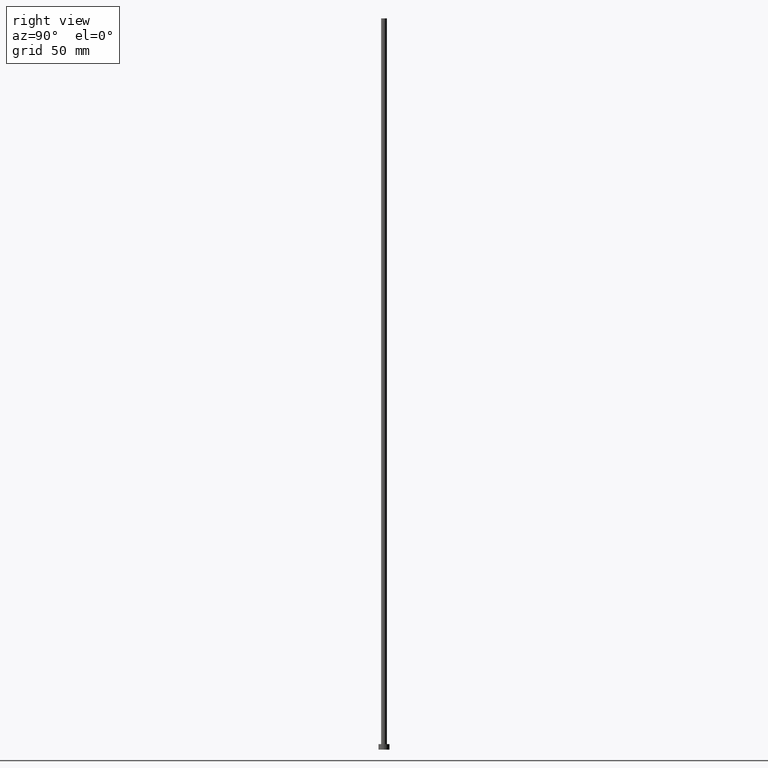
[diagram: clean part render]
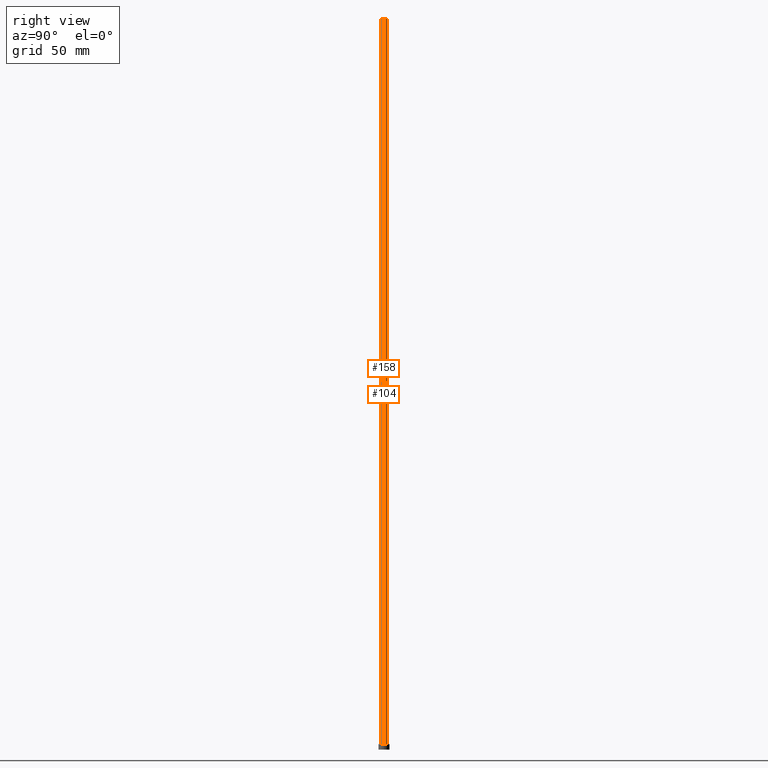
[diagram: same view with one multi-face feature highlighted, each face labeled with its STEP entity id]
A machine part, right view. The highlighted faces form ONE feature: a constant-radius fillet chain: 2 tangent blend faces with common blend radius 1.6 mm. The faces share edges in the B-rep.
Their STEP definitions:
[1] entity #158 (Cylinder):
#3 = VERTEX_POINT ( 'NONE', #246 ) ;
#12 = CARTESIAN_POINT ( 'NONE',  ( -1.600000000000000089, 0.000000000000000000, 400.0000000000000000 ) ) ;
#28 = CARTESIAN_POINT ( 'NONE',  ( 0.000000000000000000, 0.000000000000000000, 400.0000000000000000 ) ) ;
#30 = DIRECTION ( 'NONE',  ( -0.000000000000000000, -0.000000000000000000, -1.000000000000000000 ) ) ;
#33 = EDGE_CURVE ( 'NONE', #74, #204, #134, .T. ) ;
#35 = DIRECTION ( 'NONE',  ( -0.000000000000000000, -0.000000000000000000, -1.000000000000000000 ) ) ;
#45 = ORIENTED_EDGE ( 'NONE', *, *, #172, .T. ) ;
#52 = DIRECTION ( 'NONE',  ( 1.000000000000000000, 0.000000000000000000, 0.000000000000000000 ) ) ;
#55 = ORIENTED_EDGE ( 'NONE', *, *, #33, .F. ) ;
#61 = EDGE_CURVE ( 'NONE', #182, #74, #168, .T. ) ;
#62 = CIRCLE ( 'NONE', #96, 1.600000000000000089 ) ;
#68 = DIRECTION ( 'NONE',  ( 1.000000000000000000, 0.000000000000000000, 0.000000000000000000 ) ) ;
#70 = DIRECTION ( 'NONE',  ( -1.000000000000000000, 0.000000000000000000, 0.000000000000000000 ) ) ;
#74 = VERTEX_POINT ( 'NONE', #214 ) ;
#81 = VECTOR ( 'NONE', #35, 1000.000000000000000 ) ;
#95 = CARTESIAN_POINT ( 'NONE',  ( 1.600000000000000089, 1.959434878635765230E-16, 400.0000000000000000 ) ) ;
#96 = AXIS2_PLACEMENT_3D ( 'NONE', #110, #229, #68 ) ;
#102 = ORIENTED_EDGE ( 'NONE', *, *, #221, .T. ) ;
#110 = CARTESIAN_POINT ( 'NONE',  ( 0.000000000000000000, 0.000000000000000000, 3.000000000000000000 ) ) ;
#117 = EDGE_LOOP ( 'NONE', ( #55, #152, #102, #45 ) ) ;
#129 = VECTOR ( 'NONE', #213, 1000.000000000000000 ) ;
#134 = LINE ( 'NONE', #95, #129 ) ;
#152 = ORIENTED_EDGE ( 'NONE', *, *, #61, .F. ) ;
#158 = ADVANCED_FACE ( 'NONE', ( #236 ), #171, .T. ) ;
#166 = CARTESIAN_POINT ( 'NONE',  ( 1.600000000000000089, 1.959434878635765230E-16, 3.000000000000000000 ) ) ;
#168 = CIRCLE ( 'NONE', #219, 1.600000000000000089 ) ;
#170 = DIRECTION ( 'NONE',  ( 0.000000000000000000, 0.000000000000000000, 1.000000000000000000 ) ) ;
#171 = CYLINDRICAL_SURFACE ( 'NONE', #211, 1.600000000000000089 ) ;
#172 = EDGE_CURVE ( 'NONE', #3, #204, #62, .T. ) ;
#182 = VERTEX_POINT ( 'NONE', #187 ) ;
#187 = CARTESIAN_POINT ( 'NONE',  ( -1.600000000000000089, 0.000000000000000000, 400.0000000000000000 ) ) ;
#192 = CARTESIAN_POINT ( 'NONE',  ( 0.000000000000000000, 0.000000000000000000, 400.0000000000000000 ) ) ;
#204 = VERTEX_POINT ( 'NONE', #166 ) ;
#211 = AXIS2_PLACEMENT_3D ( 'NONE', #192, #30, #70 ) ;
#213 = DIRECTION ( 'NONE',  ( -0.000000000000000000, -0.000000000000000000, -1.000000000000000000 ) ) ;
#214 = CARTESIAN_POINT ( 'NONE',  ( 1.600000000000000089, 1.959434878635765230E-16, 400.0000000000000000 ) ) ;
#216 = LINE ( 'NONE', #12, #81 ) ;
#219 = AXIS2_PLACEMENT_3D ( 'NONE', #28, #170, #52 ) ;
#221 = EDGE_CURVE ( 'NONE', #182, #3, #216, .T. ) ;
#229 = DIRECTION ( 'NONE',  ( 0.000000000000000000, 0.000000000000000000, 1.000000000000000000 ) ) ;
#236 = FACE_OUTER_BOUND ( 'NONE', #117, .T. ) ;
#246 = CARTESIAN_POINT ( 'NONE',  ( -1.600000000000000089, 0.000000000000000000, 3.000000000000000000 ) ) ;
[2] entity #104 (Cylinder):
#3 = VERTEX_POINT ( 'NONE', #246 ) ;
#12 = CARTESIAN_POINT ( 'NONE',  ( -1.600000000000000089, 0.000000000000000000, 400.0000000000000000 ) ) ;
#17 = FACE_OUTER_BOUND ( 'NONE', #250, .T. ) ;
#25 = AXIS2_PLACEMENT_3D ( 'NONE', #196, #194, #234 ) ;
#29 = AXIS2_PLACEMENT_3D ( 'NONE', #159, #138, #197 ) ;
#33 = EDGE_CURVE ( 'NONE', #74, #204, #134, .T. ) ;
#35 = DIRECTION ( 'NONE',  ( -0.000000000000000000, -0.000000000000000000, -1.000000000000000000 ) ) ;
#36 = CIRCLE ( 'NONE', #25, 1.600000000000000089 ) ;
#60 = CARTESIAN_POINT ( 'NONE',  ( 0.000000000000000000, 0.000000000000000000, 400.0000000000000000 ) ) ;
#74 = VERTEX_POINT ( 'NONE', #214 ) ;
#81 = VECTOR ( 'NONE', #35, 1000.000000000000000 ) ;
#92 = EDGE_CURVE ( 'NONE', #204, #3, #149, .T. ) ;
#95 = CARTESIAN_POINT ( 'NONE',  ( 1.600000000000000089, 1.959434878635765230E-16, 400.0000000000000000 ) ) ;
#104 = ADVANCED_FACE ( 'NONE', ( #17 ), #235, .T. ) ;
#114 = ORIENTED_EDGE ( 'NONE', *, *, #140, .F. ) ;
#129 = VECTOR ( 'NONE', #213, 1000.000000000000000 ) ;
#134 = LINE ( 'NONE', #95, #129 ) ;
#138 = DIRECTION ( 'NONE',  ( 0.000000000000000000, 0.000000000000000000, 1.000000000000000000 ) ) ;
#140 = EDGE_CURVE ( 'NONE', #74, #182, #36, .T. ) ;
#145 = ORIENTED_EDGE ( 'NONE', *, *, #92, .T. ) ;
#149 = CIRCLE ( 'NONE', #29, 1.600000000000000089 ) ;
#159 = CARTESIAN_POINT ( 'NONE',  ( 0.000000000000000000, 0.000000000000000000, 3.000000000000000000 ) ) ;
#161 = DIRECTION ( 'NONE',  ( -0.000000000000000000, -0.000000000000000000, -1.000000000000000000 ) ) ;
#166 = CARTESIAN_POINT ( 'NONE',  ( 1.600000000000000089, 1.959434878635765230E-16, 3.000000000000000000 ) ) ;
#179 = AXIS2_PLACEMENT_3D ( 'NONE', #60, #161, #237 ) ;
#182 = VERTEX_POINT ( 'NONE', #187 ) ;
#187 = CARTESIAN_POINT ( 'NONE',  ( -1.600000000000000089, 0.000000000000000000, 400.0000000000000000 ) ) ;
#194 = DIRECTION ( 'NONE',  ( 0.000000000000000000, 0.000000000000000000, 1.000000000000000000 ) ) ;
#196 = CARTESIAN_POINT ( 'NONE',  ( 0.000000000000000000, 0.000000000000000000, 400.0000000000000000 ) ) ;
#197 = DIRECTION ( 'NONE',  ( 1.000000000000000000, 0.000000000000000000, 0.000000000000000000 ) ) ;
#204 = VERTEX_POINT ( 'NONE', #166 ) ;
#213 = DIRECTION ( 'NONE',  ( -0.000000000000000000, -0.000000000000000000, -1.000000000000000000 ) ) ;
#214 = CARTESIAN_POINT ( 'NONE',  ( 1.600000000000000089, 1.959434878635765230E-16, 400.0000000000000000 ) ) ;
#216 = LINE ( 'NONE', #12, #81 ) ;
#221 = EDGE_CURVE ( 'NONE', #182, #3, #216, .T. ) ;
#228 = ORIENTED_EDGE ( 'NONE', *, *, #221, .F. ) ;
#232 = ORIENTED_EDGE ( 'NONE', *, *, #33, .T. ) ;
#234 = DIRECTION ( 'NONE',  ( 1.000000000000000000, 0.000000000000000000, 0.000000000000000000 ) ) ;
#235 = CYLINDRICAL_SURFACE ( 'NONE', #179, 1.600000000000000089 ) ;
#237 = DIRECTION ( 'NONE',  ( -1.000000000000000000, 0.000000000000000000, 0.000000000000000000 ) ) ;
#246 = CARTESIAN_POINT ( 'NONE',  ( -1.600000000000000089, 0.000000000000000000, 3.000000000000000000 ) ) ;
#250 = EDGE_LOOP ( 'NONE', ( #114, #232, #145, #228 ) ) ;